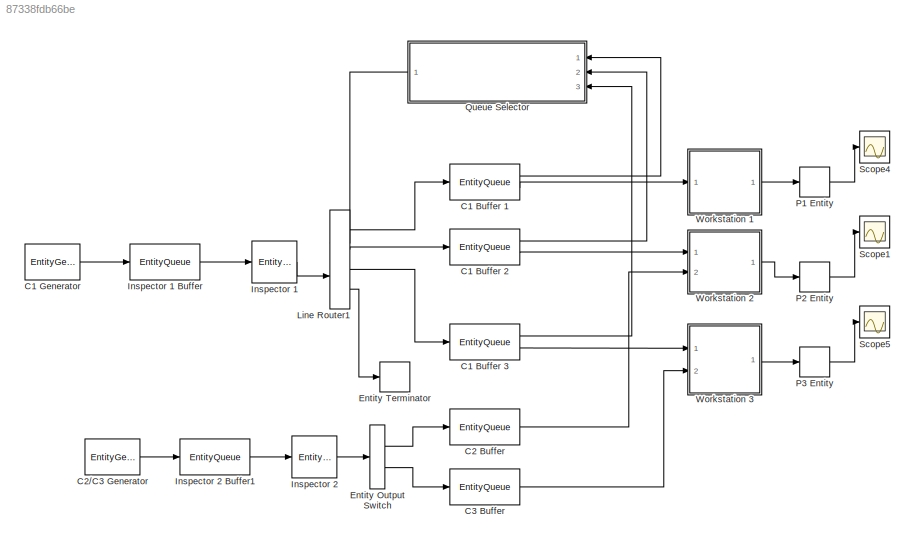
MODEL slx_87338fdb66be
KIND model
CONFIG AbsTol = auto
CONFIG EnableMultiTasking = off
CONFIG FixedStep = auto
CONFIG MaxStep = auto
CONFIG MinStep = auto
CONFIG RelTol = 1e-3
CONFIG SampleTimeConstraint = Unconstrained
CONFIG Solver = VariableStepAuto
CONFIG SolverName = VariableStepAuto
CONFIG StartTime = 0.0
CONFIG StopTime = 4000
BLOCK [EntityQueue] C1 Buffer 1
  Capacity = 2
  InputPortMap = u0
  InputPortMessageModes = m
  NumberEntitiesInBlock = on
  OutputPortMap = o1,o5
  OutputPortMessageModes = n,m
  Ports = [1, 2]
BLOCK [EntityQueue] C1 Buffer 2
  Capacity = 2
  InputPortMap = u0
  InputPortMessageModes = m
  NumberEntitiesInBlock = on
  OutputPortMap = o1,o5
  OutputPortMessageModes = n,m
  Ports = [1, 2]
BLOCK [EntityQueue] C1 Buffer 3
  Capacity = 2
  InputPortMap = u0
  InputPortMessageModes = m
  NumberEntitiesInBlock = on
  OutputPortMap = o1,o5
  OutputPortMessageModes = n,m
  Ports = [1, 2]
BLOCK [EntityGenerator] C1 Generator
  AttributeInitialValue = 1|1
  AttributeName = entityType|outputPort
  EntityType = Structured
  EntityTypeName = Entity
  OutputPortMap = o3
  OutputPortMessageModes = m
  Period = 0
  Ports = [0, 1]
BLOCK [EntityQueue] C2 Buffer
  Capacity = 2
  InputPortMap = u0
  InputPortMessageModes = m
  OutputPortMap = o5
  OutputPortMessageModes = m
  Ports = [1, 1]
BLOCK [EntityGenerator] C2//C3 Generator
  AttributeInitialValue = 1|1
  AttributeName = entityType|outputPort
  EntityType = Structured
  EntityTypeName = Entity
  GenerateAction = % Generate a random entity type corresponding\n% To the component type\nentity.entityType = randi([2, 3])\n\n% Define the output port\nswitch entity.entityType\n    case 2\n        entity.outputPort = 1\n    case 3\n        entity.outputPort = 2\n    otherwise\n        error('Invalid entity type')\nend
  OutputPortMap = o3
  OutputPortMessageModes = m
  Period = 0
  Ports = [0, 1]
BLOCK [EntityQueue] C3 Buffer
  Capacity = 2
  InputPortMap = u0
  InputPortMessageModes = m
  OutputPortMap = o5
  OutputPortMessageModes = m
  Ports = [1, 1]
BLOCK [EntityOutputSwitch] Entity Output Switch
  InputPortMap = u1
  InputPortMessageModes = m
  OutputPortMap = o0,o1
  OutputPortMessageModes = m,m
  Ports = [1, 2]
  SwitchAttributeName = outputPort
  SwitchingCriterion = From attribute
BLOCK [EntityTerminator] Entity Terminator
  InputPortMap = u0
  InputPortMessageModes = m
  Ports = [1]
BLOCK [EntityServer] Inspector 1
  Capacity = 1
  EntryAction = % Entity will select the shortest queue\npickRandomQueue();
  InputPortMap = u2
  InputPortMessageModes = m
  OutputPortMap = o9
  OutputPortMessageModes = m
  Ports = [1, 1]
  ServiceTimeAction = dt = wblrnd(10.725, 1.096);
  ServiceTimeSource = MATLAB action
BLOCK [EntityQueue] Inspector 1 Buffer
  InputPortMap = u0
  InputPortMessageModes = m
  OutputPortMap = o5
  OutputPortMessageModes = m
  Ports = [1, 1]
BLOCK [EntityServer] Inspector 2 
  Capacity = 1
  InputPortMap = u2
  InputPortMessageModes = m
  OutputPortMap = o9
  OutputPortMessageModes = m
  Ports = [1, 1]
  ServiceTimeAction = % Depending on the type of entity\n% Generate the appropriate service time\nswitch entity.entityType\n    case 2\n        dt = wblrnd(16.0876, 1.09601);\n    case 3\n        dt = exprnd(20.6328);\n    otherwise\n        dt = -1\nend
  ServiceTimeSource = MATLAB action
BLOCK [EntityQueue] Inspector 2 Buffer1
  InputPortMap = u0
  InputPortMessageModes = m
  OutputPortMap = o5
  OutputPortMessageModes = m
  Ports = [1, 1]
BLOCK [EntityOutputSwitch] Line Router1
  InputPortMap = u0,u1
  InputPortMessageModes = m,m
  NumberOutputPorts = 4
  OutputPortMap = o0,o1,o2,o3
  OutputPortMessageModes = m,m,m,m
  Ports = [2, 4]
  SwitchAttributeName = QueuePath
  SwitchingCriterion = From control port
BLOCK [EntityTerminator] P1 Entity
  InputPortMap = u0
  InputPortMessageModes = m
  NumberEntitiesArrived = on
  OutputPortMap = o0
  Ports = [1, 1]
BLOCK [EntityTerminator] P2 Entity
  InputPortMap = u0
  InputPortMessageModes = m
  NumberEntitiesArrived = on
  OutputPortMap = o0
  Ports = [1, 1]
BLOCK [EntityTerminator] P3 Entity
  InputPortMap = u0
  InputPortMessageModes = m
  NumberEntitiesArrived = on
  OutputPortMap = o0
  Ports = [1, 1]
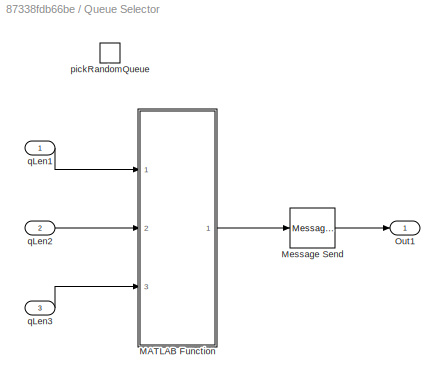
BLOCK [SubSystem] Queue Selector
  Ports = [3, 1, 0, 1]
  RequestExecContextInheritance = off
  TreatAsAtomicUnit = on
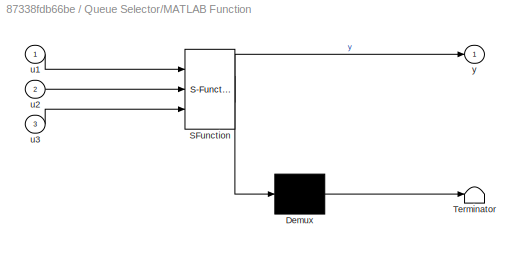
BLOCK [SubSystem] Queue Selector/MATLAB Function
  ErrorFcn = Stateflow.Translate.translate
  PermitHierarchicalResolution = ExplicitOnly
  Ports = [3, 1]
  RequestExecContextInheritance = off
  SFBlockType = MATLAB Function
  TreatAsAtomicUnit = on
BLOCK [Demux] Queue Selector/MATLAB Function/ Demux 
  Outputs = 1
  Ports = [1, 1]
BLOCK [S-Function] Queue Selector/MATLAB Function/ SFunction 
  EnableBusSupport = on
  FunctionName = sf_sfun
  PortCounts = [3 2]
  Ports = [3, 2]
  SFcnIsStateOwnerBlock = off
  SFunctionDeploymentMode = off
  Tag = Stateflow S-Function ManufacturingFacility_Alt 1
BLOCK [Terminator] Queue Selector/MATLAB Function/ Terminator 
BLOCK [Inport] Queue Selector/MATLAB Function/u1
  IconDisplay = Port number
BLOCK [Inport] Queue Selector/MATLAB Function/u2
  IconDisplay = Port number
  Port = 2
BLOCK [Inport] Queue Selector/MATLAB Function/u3
  IconDisplay = Port number
  Port = 3
BLOCK [Outport] Queue Selector/MATLAB Function/y
  IconDisplay = Port number
BLOCK [MessageSend] Queue Selector/Message Send
  InputPortMap = u1
  OutputPortMessageModes = m
  Ports = [1, 1]
BLOCK [Outport] Queue Selector/Out1
  IconDisplay = Port number
BLOCK [TriggerPort] Queue Selector/pickRandomQueue
  FunctionName = pickRandomQueue
  FunctionVisibility = scoped
  IsSimulinkFunction = on
  Ports = []
  StatesWhenEnabling = held
  TriggerType = function-call
  VariantControl = Variant
BLOCK [Inport] Queue Selector/qLen1
  IconDisplay = Port number
BLOCK [Inport] Queue Selector/qLen2
  IconDisplay = Port number
  Port = 2
BLOCK [Inport] Queue Selector/qLen3
  IconDisplay = Port number
  Port = 3
BLOCK [Scope] Scope1
  Floating = off
  NumInputPorts = 1
  Ports = [1]
  ScopeSpecificationString = Simulink.scopes.TimeScopeBlockCfg('CurrentConfiguration', extmgr.ConfigurationSet(extmgr.Configuration('Core','General UI',true),extmgr.Configuration('Core','Source UI',true),extmgr.Configuration('Sources','WiredSimulink',true,'DataLoggingVariableName','ScopeData1'),extmgr.Configuration('Visuals','Time Domain',true,'SerializedDisplays',{struct('MinYLimReal','-11.25','MaxYLimReal','111.25','YLabelR...<+1390ch>
BLOCK [Scope] Scope4
  Floating = off
  NumInputPorts = 1
  Ports = [1]
  ScopeSpecificationString = Simulink.scopes.TimeScopeBlockCfg('CurrentConfiguration', extmgr.ConfigurationSet(extmgr.Configuration('Core','General UI',true),extmgr.Configuration('Core','Source UI',true),extmgr.Configuration('Sources','WiredSimulink',true,'DataLoggingVariableName','ScopeData2'),extmgr.Configuration('Visuals','Time Domain',true,'SerializedDisplays',{struct('MinYLimReal','-15.25','MaxYLimReal','147.25','YLabelR...<+1390ch>
BLOCK [Scope] Scope5
  Floating = off
  NumInputPorts = 1
  Ports = [1]
  ScopeSpecificationString = Simulink.scopes.TimeScopeBlockCfg('CurrentConfiguration', extmgr.ConfigurationSet(extmgr.Configuration('Core','General UI',true),extmgr.Configuration('Core','Source UI',true),extmgr.Configuration('Sources','WiredSimulink',true),extmgr.Configuration('Visuals','Time Domain',true,'SerializedDisplays',{struct('MinYLimReal','-10.5','MaxYLimReal','104.5','YLabelReal','','MinYLimMag','0.00000','MaxYLimMa...<+1345ch>
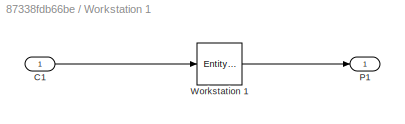
BLOCK [SubSystem] Workstation 1 
  Ports = [1, 1]
  RequestExecContextInheritance = off
BLOCK [Inport] Workstation 1 /C1
  IconDisplay = Port number
BLOCK [Outport] Workstation 1 /P1
  IconDisplay = Port number
BLOCK [EntityServer] Workstation 1 /Workstation 1
  Capacity = 1
  InputPortMap = u2
  InputPortMessageModes = m
  OutputPortMap = o9
  OutputPortMessageModes = m
  Ports = [1, 1]
  ServiceTimeAction = dt = exprnd(4.60442);
  ServiceTimeSource = MATLAB action
  ServiceTimeValue = 20
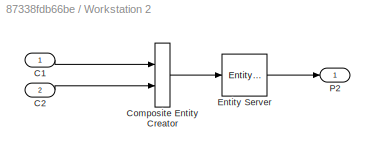
BLOCK [SubSystem] Workstation 2
  Ports = [2, 1]
  RequestExecContextInheritance = off
BLOCK [Inport] Workstation 2/C1
  IconDisplay = Port number
BLOCK [Inport] Workstation 2/C2
  IconDisplay = Port number
  Port = 2
BLOCK [CompositeEntityCreator] Workstation 2/Composite Entity Creator
  EntityTypeName = Combined
  InputPortMap = u0,u1
  InputPortMessageModes = m,m
  OutputPortMap = o0
  OutputPortMessageModes = m
  Ports = [2, 1]
BLOCK [EntityServer] Workstation 2/Entity Server
  Capacity = 1
  InputPortMap = u2
  InputPortMessageModes = m
  OutputPortMap = o9
  OutputPortMessageModes = m
  Ports = [1, 1]
  ServiceTimeAction = dt = wblrnd(10.6815, 0.922808);
  ServiceTimeSource = MATLAB action
  ServiceTimeValue = 20
BLOCK [Outport] Workstation 2/P2
  IconDisplay = Port number
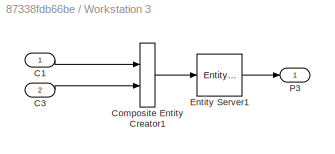
BLOCK [SubSystem] Workstation 3
  Ports = [2, 1]
  RequestExecContextInheritance = off
BLOCK [Inport] Workstation 3/C1
  IconDisplay = Port number
BLOCK [Inport] Workstation 3/C3
  IconDisplay = Port number
  Port = 2
BLOCK [CompositeEntityCreator] Workstation 3/Composite Entity Creator1
  EntityTypeName = Combined
  InputPortMap = u0,u1
  InputPortMessageModes = m,m
  OutputPortMap = o0
  OutputPortMessageModes = m
  Ports = [2, 1]
BLOCK [EntityServer] Workstation 3/Entity Server1
  Capacity = 1
  InputPortMap = u2
  InputPortMessageModes = m
  OutputPortMap = o9
  OutputPortMessageModes = m
  Ports = [1, 1]
  ServiceTimeAction = dt = exprnd(8.79558);
  ServiceTimeSource = MATLAB action
  ServiceTimeValue = 20
BLOCK [Outport] Workstation 3/P3
  IconDisplay = Port number
LINE C1 Buffer 1:1 -> Queue Selector:1
LINE C1 Buffer 1:2 -> Workstation 1 :1
LINE C1 Buffer 2:1 -> Queue Selector:2
LINE C1 Buffer 2:2 -> Workstation 2:1
LINE C1 Buffer 3:1 -> Queue Selector:3
LINE C1 Buffer 3:2 -> Workstation 3:1
LINE C1 Generator:1 -> Inspector 1 Buffer:1
LINE C2 Buffer:1 -> Workstation 2:2
LINE C2//C3 Generator:1 -> Inspector 2 Buffer1:1
LINE C3 Buffer:1 -> Workstation 3:2
LINE Entity Output Switch:1 -> C2 Buffer:1
LINE Entity Output Switch:2 -> C3 Buffer:1
LINE Inspector 1 Buffer:1 -> Inspector 1:1
LINE Inspector 1:1 -> Line Router1:2
LINE Inspector 2 :1 -> Entity Output Switch:1
LINE Inspector 2 Buffer1:1 -> Inspector 2 :1
LINE Line Router1:1 -> C1 Buffer 1:1
LINE Line Router1:2 -> C1 Buffer 2:1
LINE Line Router1:3 -> C1 Buffer 3:1
LINE Line Router1:4 -> Entity Terminator:1
LINE P1 Entity:1 -> Scope4:1
LINE P2 Entity:1 -> Scope1:1
LINE P3 Entity:1 -> Scope5:1
LINE Queue Selector/MATLAB Function:1 -> Queue Selector/Message Send:1
LINE Queue Selector/Message Send:1 -> Queue Selector/Out1:1
LINE Queue Selector/qLen1:1 -> Queue Selector/MATLAB Function:1
LINE Queue Selector/qLen2:1 -> Queue Selector/MATLAB Function:2
LINE Queue Selector/qLen3:1 -> Queue Selector/MATLAB Function:3
LINE Queue Selector:1 -> Line Router1:1
LINE Workstation 1 /C1:1 -> Workstation 1 /Workstation 1:1
LINE Workstation 1 /Workstation 1:1 -> Workstation 1 /P1:1
LINE Workstation 1 :1 -> P1 Entity:1
LINE Workstation 2/C1:1 -> Workstation 2/Composite Entity Creator:1
LINE Workstation 2/C2:1 -> Workstation 2/Composite Entity Creator:2
LINE Workstation 2/Composite Entity Creator:1 -> Workstation 2/Entity Server:1
LINE Workstation 2/Entity Server:1 -> Workstation 2/P2:1
LINE Workstation 2:1 -> P2 Entity:1
LINE Workstation 3/C1:1 -> Workstation 3/Composite Entity Creator1:1
LINE Workstation 3/C3:1 -> Workstation 3/Composite Entity Creator1:2
LINE Workstation 3/Composite Entity Creator1:1 -> Workstation 3/Entity Server1:1
LINE Workstation 3/Entity Server1:1 -> Workstation 3/P3:1
LINE Workstation 3:1 -> P3 Entity:1
CHART Queue Selector/MATLAB Function states=1 transitions=1
  STATE_LABEL 'eML_blk_kernel()'
  STATE_LABEL 'SCRIPT:\nfunction y = fcn(u1, u2, u3)\ny = randi([1,3]);\nif and(y == 1, u1 >= 2) || and(y==2, u2 >=2) || and(y==3, u3 >=2)\n    y = 4;\nend'
